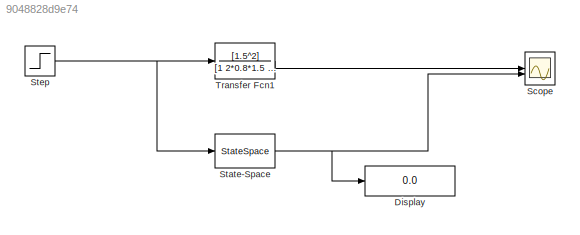
MODEL slx_9048828d9e74
KIND model
CONFIG AbsTol = auto
CONFIG EnableMultiTasking = off
CONFIG FixedStep = auto
CONFIG MaxStep = auto
CONFIG MinStep = auto
CONFIG RelTol = 1e-3
CONFIG SampleTimeConstraint = Unconstrained
CONFIG SolverName = VariableStepAuto
CONFIG StartTime = 0.0
CONFIG StopTime = 10.0
BLOCK [Display] Display
  Decimation = 1
BLOCK [Scope] Scope
  Floating = off
  NumInputPorts = 2
  ScopeSpecificationString = Simulink.scopes.TimeScopeBlockCfg('CurrentConfiguration', extmgr.ConfigurationSet(extmgr.Configuration('Core','General UI',true),extmgr.Configuration('Core','Source UI',true),extmgr.Configuration('Sources','WiredSimulink',true),extmgr.Configuration('Visuals','Time Domain',true,'SerializedDisplays',{struct('MinYLimReal','-0.3067','MaxYLimReal','2.76031','YLabelReal','','MinYLimMag','0.00000','MaxYL...<+1431ch>
BLOCK [StateSpace] State-Space
  A = [0 -2.25;1 -2.4]
  B = [2.25;0]
  C = eye(2)
  D = [0;0]
  InitialCondition = [0 0]
BLOCK [Step] Step
  SampleTime = 0
BLOCK [TransferFcn] Transfer Fcn1
  Denominator = [1 2*0.8*1.5 1.5^2]
  Numerator = [1.5^2]
NET State-Space:1 -> Display:1, Scope:2
NET Step:1 -> State-Space:1, Transfer Fcn1:1
LINE Transfer Fcn1:1 -> Scope:1
note: NET lines group one-source signal fan-out (src -> all destinations, sorted); 1:1 wires keep LINE
